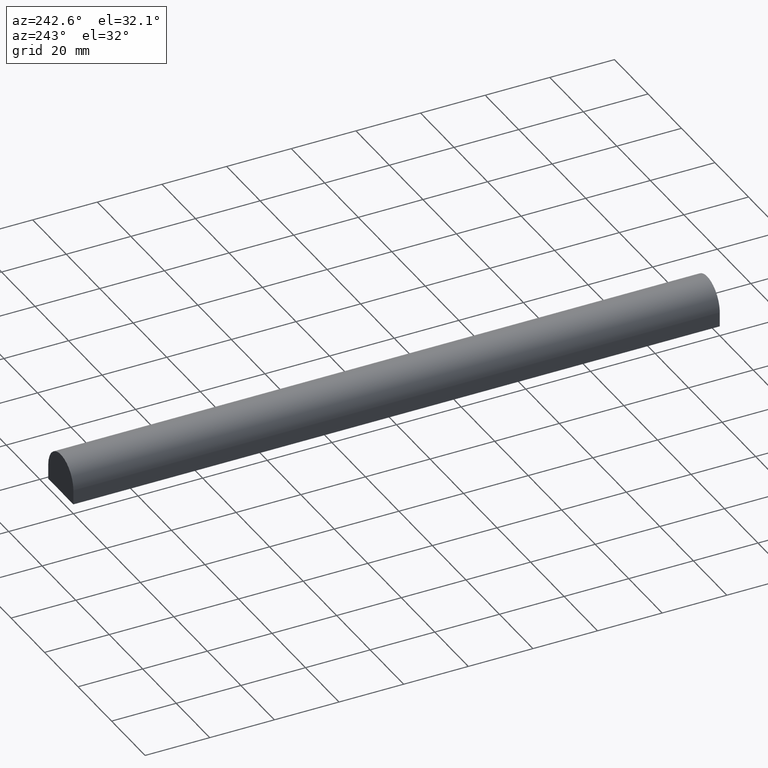
[diagram: clean part render]
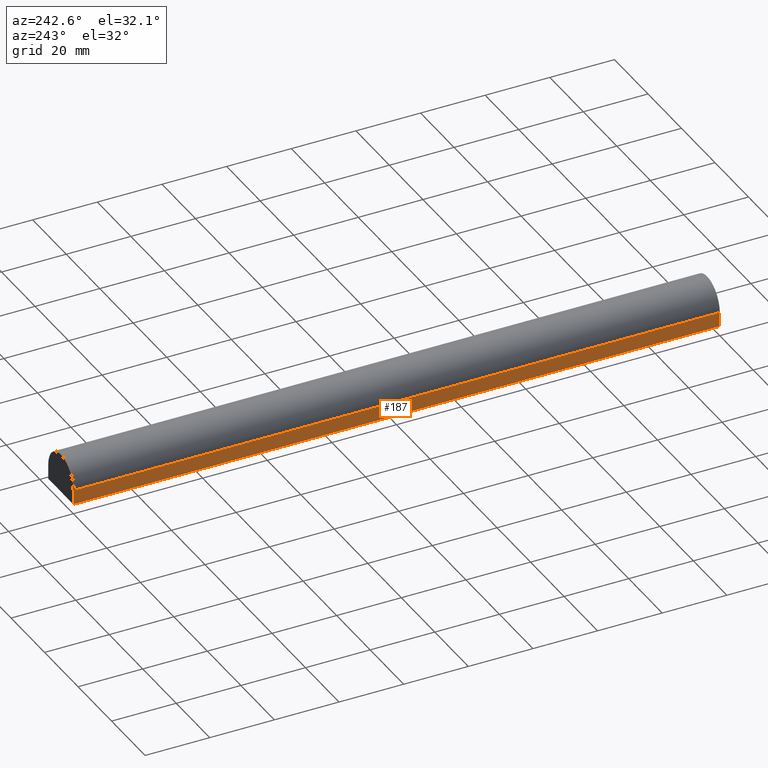
[diagram: same view with one face highlighted and labeled with its STEP entity id]
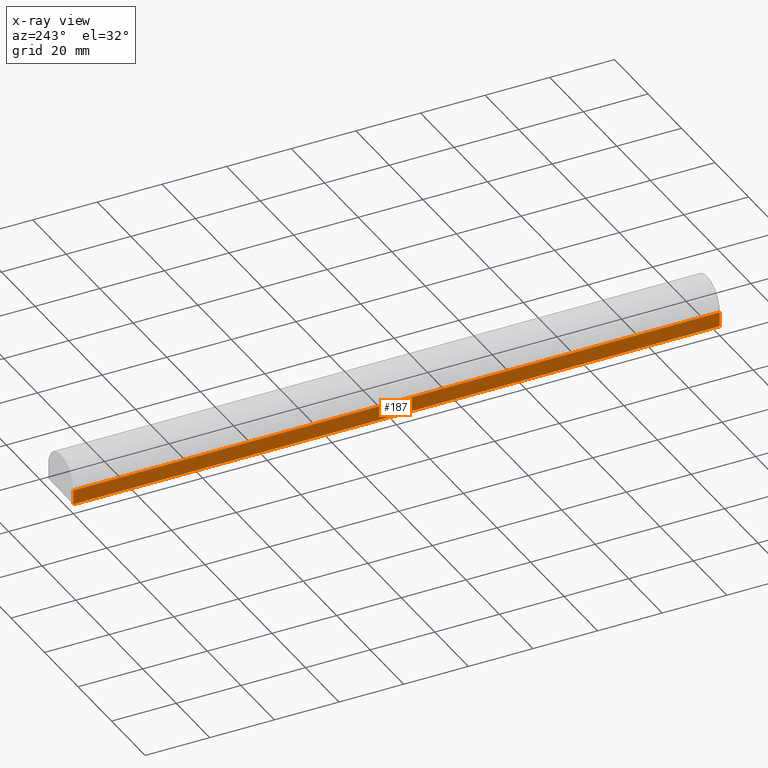
[diagram: x-ray of the same camera — body ghosted, the highlighted face saturated]
A machine part, auxiliary view. The second image highlights one B-rep face of the part: STEP entity #187.
The next image is the same camera in x-ray: the body ghosted, the highlighted face saturated — about 0% of this face is hidden behind the body in this view.
In plain terms, the highlighted face is a freeform B-spline surface patch.
Its self-contained STEP definition (entity closure, byte-faithful):
#51=CARTESIAN_POINT('',(0.0,0.0,4.500000000000000));
#52=VERTEX_POINT('',#51);
#68=CARTESIAN_POINT('',(0.0,0.0,0.0));
#69=VERTEX_POINT('',#68);
#70=CARTESIAN_POINT('',(0.0,0.0,4.500000000000000));
#71=CARTESIAN_POINT('',(0.0,0.0,0.0));
#72=QUASI_UNIFORM_CURVE('',1,(#70,#71),.UNSPECIFIED.,.F.,.U.);
#73=EDGE_CURVE('',#52,#69,#72,.T.);
#97=CARTESIAN_POINT('',(0.0,200.0,4.500000000000000));
#98=VERTEX_POINT('',#97);
#121=CARTESIAN_POINT('',(0.0,200.0,0.0));
#122=VERTEX_POINT('',#121);
#128=CARTESIAN_POINT('',(0.0,200.0,4.500000000000000));
#129=CARTESIAN_POINT('',(0.0,200.0,0.0));
#130=QUASI_UNIFORM_CURVE('',1,(#128,#129),.UNSPECIFIED.,.F.,.U.);
#131=EDGE_CURVE('',#98,#122,#130,.T.);
#162=CARTESIAN_POINT('',(0.0,200.0,0.0));
#163=CARTESIAN_POINT('',(0.0,0.0,0.0));
#164=QUASI_UNIFORM_CURVE('',1,(#162,#163),.UNSPECIFIED.,.F.,.U.);
#165=EDGE_CURVE('',#122,#69,#164,.T.);
#172=CARTESIAN_POINT('',(0.0,-9.989999612361171,-0.224774991278127));
#173=CARTESIAN_POINT('',(0.0,-9.989999612361171,4.724775111977531));
#174=CARTESIAN_POINT('',(0.0,209.990004976779200,-0.224774991278127));
#175=CARTESIAN_POINT('',(0.0,209.990004976779200,4.724775111977531));
#176=B_SPLINE_SURFACE_WITH_KNOTS('',1,1,((#172,#174),(#173,#175)),.UNSPECIFIED.,.F.,.F.,.U.,(2,2),(2,2),(0.0,4.949550103255658),(0.0,219.980004589140410),.UNSPECIFIED.);
#177=ORIENTED_EDGE('',*,*,#73,.F.);
#178=CARTESIAN_POINT('',(0.0,200.0,4.500000000000000));
#179=CARTESIAN_POINT('',(0.0,0.0,4.500000000000000));
#180=QUASI_UNIFORM_CURVE('',1,(#178,#179),.UNSPECIFIED.,.F.,.U.);
#181=EDGE_CURVE('',#98,#52,#180,.T.);
#182=ORIENTED_EDGE('',*,*,#181,.F.);
#183=ORIENTED_EDGE('',*,*,#131,.T.);
#184=ORIENTED_EDGE('',*,*,#165,.T.);
#185=EDGE_LOOP('',(#177,#182,#183,#184));
#186=FACE_OUTER_BOUND('',#185,.T.);
#187=ADVANCED_FACE('',(#186),#176,.T.);